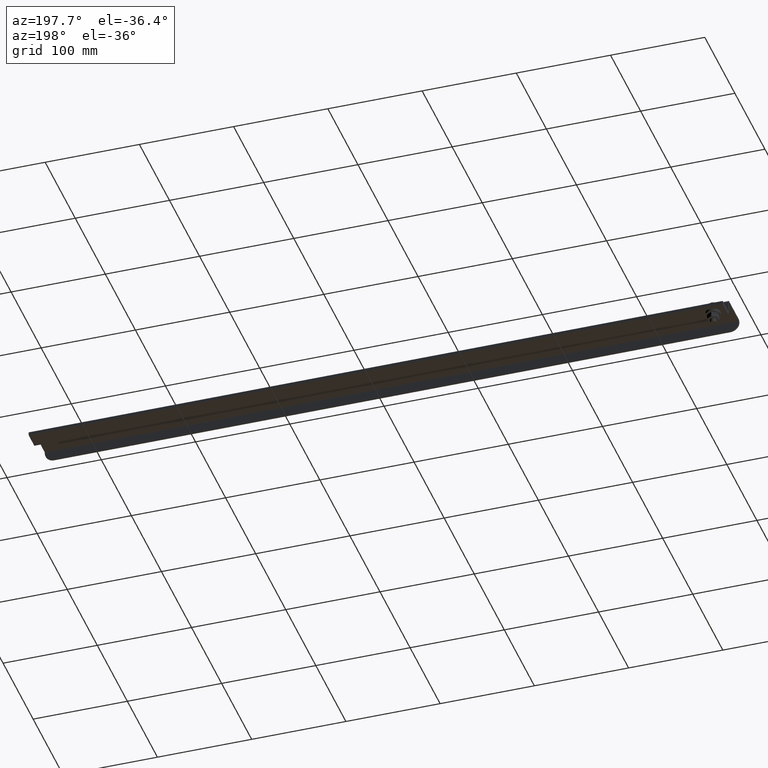
[diagram: clean part render]
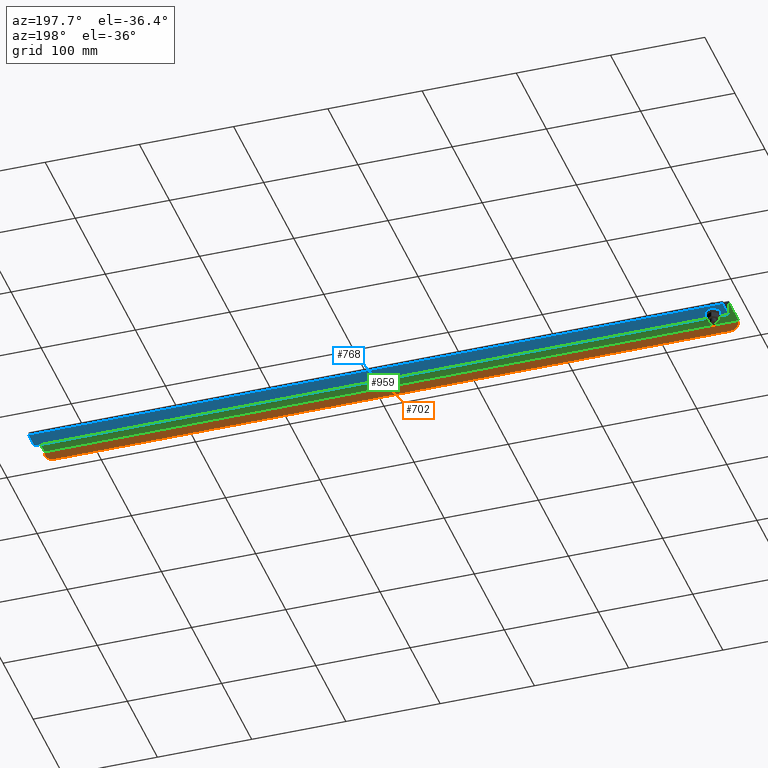
[diagram: same view with three faces highlighted in distinct colors, each labeled with its STEP entity id]
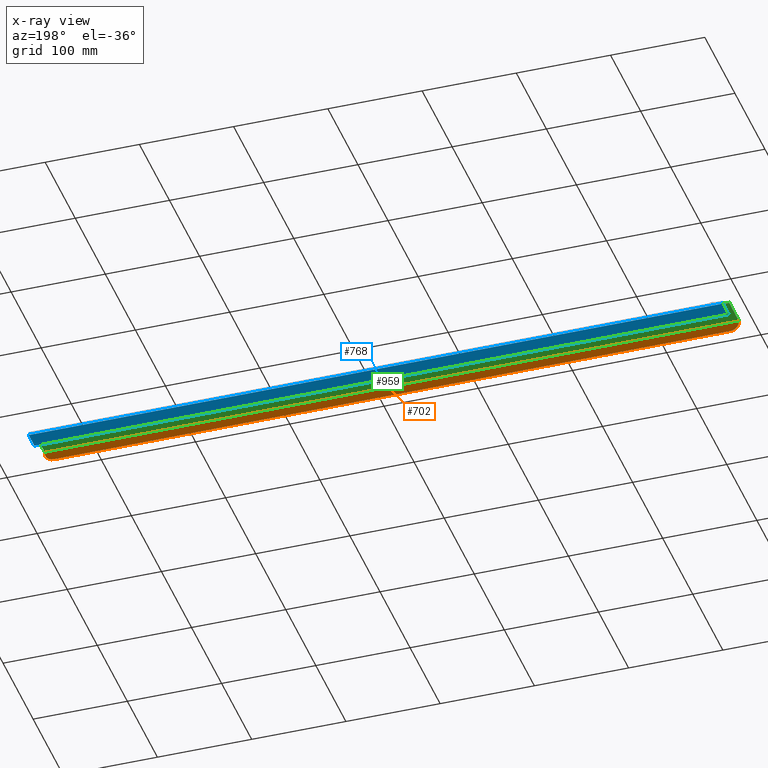
[diagram: x-ray of the same camera — body ghosted, the three highlighted faces saturated]
A machine part, auxiliary view with three faces highlighted in distinct colors.
The next image is the same camera in x-ray (body ghosted, the three faces saturated) — at least one of them is partly hidden behind the body in this view.
Their STEP definitions:

[orange] entity #702 — the highlighted planar face has unit normal (0, -1, -0).
#8 = DIRECTION ( 'NONE',  ( 0.0000000000000000000, 0.0000000000000000000, -1.000000000000000000 ) ) ;
#34 = CARTESIAN_POINT ( 'NONE',  ( -14.50000000000000178, -1.022000000000011788, 0.5095000000000000639 ) ) ;
#66 = ORIENTED_EDGE ( 'NONE', *, *, #1267, .F. ) ;
#154 = AXIS2_PLACEMENT_3D ( 'NONE', #2006, #249, #855 ) ;
#164 = CARTESIAN_POINT ( 'NONE',  ( -14.50000000000000178, -1.022000000000012010, 0.4470000000000000639 ) ) ;
#196 = DIRECTION ( 'NONE',  ( 1.000000000000000000, 0.0000000000000000000, 0.0000000000000000000 ) ) ;
#249 = DIRECTION ( 'NONE',  ( 0.0000000000000000000, -1.000000000000000000, 0.0000000000000000000 ) ) ;
#257 = EDGE_LOOP ( 'NONE', ( #778, #66, #964, #2224, #467, #2267 ) ) ;
#315 = EDGE_CURVE ( 'NONE', #1581, #971, #2338, .T. ) ;
#430 = AXIS2_PLACEMENT_3D ( 'NONE', #1500, #1864, #2058 ) ;
#467 = ORIENTED_EDGE ( 'NONE', *, *, #1985, .T. ) ;
#652 = VECTOR ( 'NONE', #2140, 39.37007874015748143 ) ;
#702 = ADVANCED_FACE ( 'NONE', ( #1110 ), #904, .F. ) ;
#738 = CARTESIAN_POINT ( 'NONE',  ( -14.12500000000000000, -1.022000000000012010, 0.4470000000000000639 ) ) ;
#778 = ORIENTED_EDGE ( 'NONE', *, *, #1837, .F. ) ;
#794 = LINE ( 'NONE', #1712, #2260 ) ;
#807 = EDGE_CURVE ( 'NONE', #971, #1336, #1588, .T. ) ;
#855 = DIRECTION ( 'NONE',  ( 0.0000000000000000000, 0.0000000000000000000, -1.000000000000000000 ) ) ;
#904 = PLANE ( 'NONE',  #430 ) ;
#964 = ORIENTED_EDGE ( 'NONE', *, *, #807, .F. ) ;
#971 = VERTEX_POINT ( 'NONE', #164 ) ;
#1050 = DIRECTION ( 'NONE',  ( -0.0000000000000000000, -6.123031769111889989E-17, 1.000000000000000000 ) ) ;
#1102 = CIRCLE ( 'NONE', #154, 0.3750000000000000555 ) ;
#1110 = FACE_OUTER_BOUND ( 'NONE', #257, .T. ) ;
#1119 = CARTESIAN_POINT ( 'NONE',  ( 14.50000000000000178, -1.022000000000012010, 0.4640000000000000235 ) ) ;
#1187 = CARTESIAN_POINT ( 'NONE',  ( 14.50000000000000178, -1.022000000000011788, 0.4470000000000000639 ) ) ;
#1215 = CARTESIAN_POINT ( 'NONE',  ( 14.12500000000000000, -1.022000000000011788, 0.07200000000000000844 ) ) ;
#1235 = VERTEX_POINT ( 'NONE', #1215 ) ;
#1259 = CARTESIAN_POINT ( 'NONE',  ( -14.12500000000000000, -1.022000000000012010, 0.07200000000000000844 ) ) ;
#1267 = EDGE_CURVE ( 'NONE', #1336, #1235, #1584, .T. ) ;
#1281 = LINE ( 'NONE', #1422, #1636 ) ;
#1336 = VERTEX_POINT ( 'NONE', #1259 ) ;
#1422 = CARTESIAN_POINT ( 'NONE',  ( 14.50000000000000178, -1.022000000000011788, 0.5095000000000000639 ) ) ;
#1451 = VERTEX_POINT ( 'NONE', #1119 ) ;
#1485 = AXIS2_PLACEMENT_3D ( 'NONE', #738, #2337, #8 ) ;
#1500 = CARTESIAN_POINT ( 'NONE',  ( 14.50000000000000178, -1.022000000000011788, 0.5095000000000000639 ) ) ;
#1581 = VERTEX_POINT ( 'NONE', #1914 ) ;
#1584 = LINE ( 'NONE', #2209, #2052 ) ;
#1588 = CIRCLE ( 'NONE', #1485, 0.3750000000000000555 ) ;
#1636 = VECTOR ( 'NONE', #1050, 39.37007874015748143 ) ;
#1671 = VERTEX_POINT ( 'NONE', #1187 ) ;
#1712 = CARTESIAN_POINT ( 'NONE',  ( -14.50000000000000178, -1.022000000000012010, 0.4640000000000000235 ) ) ;
#1837 = EDGE_CURVE ( 'NONE', #1235, #1671, #1102, .T. ) ;
#1864 = DIRECTION ( 'NONE',  ( 0.0000000000000000000, -1.000000000000000000, -6.123031769111889989E-17 ) ) ;
#1893 = EDGE_CURVE ( 'NONE', #1671, #1451, #1281, .T. ) ;
#1914 = CARTESIAN_POINT ( 'NONE',  ( -14.50000000000000178, -1.022000000000012010, 0.4640000000000000235 ) ) ;
#1985 = EDGE_CURVE ( 'NONE', #1581, #1451, #794, .T. ) ;
#2006 = CARTESIAN_POINT ( 'NONE',  ( 14.12500000000000000, -1.022000000000011788, 0.4470000000000000639 ) ) ;
#2035 = DIRECTION ( 'NONE',  ( 1.000000000000000000, 0.0000000000000000000, 0.0000000000000000000 ) ) ;
#2052 = VECTOR ( 'NONE', #2035, 39.37007874015748143 ) ;
#2058 = DIRECTION ( 'NONE',  ( 0.0000000000000000000, 6.123031769111889989E-17, -1.000000000000000000 ) ) ;
#2140 = DIRECTION ( 'NONE',  ( 0.0000000000000000000, 6.123031769111889989E-17, -1.000000000000000000 ) ) ;
#2209 = CARTESIAN_POINT ( 'NONE',  ( 14.50000000000000178, -1.022000000000011788, 0.07200000000000000844 ) ) ;
#2224 = ORIENTED_EDGE ( 'NONE', *, *, #315, .F. ) ;
#2260 = VECTOR ( 'NONE', #196, 39.37007874015748143 ) ;
#2267 = ORIENTED_EDGE ( 'NONE', *, *, #1893, .F. ) ;
#2337 = DIRECTION ( 'NONE',  ( 0.0000000000000000000, -1.000000000000000000, 0.0000000000000000000 ) ) ;
#2338 = LINE ( 'NONE', #34, #652 ) ;

[blue] entity #768 — the highlighted planar face has unit normal (-0, 0, -1).
#37 = EDGE_LOOP ( 'NONE', ( #2125, #405, #2139, #683 ) ) ;
#77 = VERTEX_POINT ( 'NONE', #514 ) ;
#83 = EDGE_CURVE ( 'NONE', #77, #1878, #2247, .T. ) ;
#153 = DIRECTION ( 'NONE',  ( -5.652099297236410272E-17, -1.000000000000000000, -5.691349986800544674E-17 ) ) ;
#271 = VECTOR ( 'NONE', #2450, 39.37007874015748143 ) ;
#284 = VECTOR ( 'NONE', #153, 39.37007874015748143 ) ;
#320 = DIRECTION ( 'NONE',  ( -5.652099297236410272E-17, -1.000000000000000000, -5.691349986800544674E-17 ) ) ;
#405 = ORIENTED_EDGE ( 'NONE', *, *, #674, .T. ) ;
#426 = CARTESIAN_POINT ( 'NONE',  ( -14.50000000000000178, 0.3440000000000020264, -0.1350000000000000089 ) ) ;
#514 = CARTESIAN_POINT ( 'NONE',  ( 14.50000000000000178, 1.094000000000000306, -0.1349999999999999534 ) ) ;
#600 = VECTOR ( 'NONE', #1406, 39.37007874015748143 ) ;
#674 = EDGE_CURVE ( 'NONE', #2368, #77, #1562, .T. ) ;
#683 = ORIENTED_EDGE ( 'NONE', *, *, #1775, .T. ) ;
#732 = DIRECTION ( 'NONE',  ( -6.690666838391851913E-32, 5.691349986800544674E-17, -1.000000000000000000 ) ) ;
#768 = ADVANCED_FACE ( 'NONE', ( #2384 ), #1666, .T. ) ;
#772 = EDGE_CURVE ( 'NONE', #1958, #2368, #861, .T. ) ;
#861 = LINE ( 'NONE', #1682, #271 ) ;
#871 = CARTESIAN_POINT ( 'NONE',  ( -14.50000000000000178, 1.094000000000002082, -0.1349999999999999534 ) ) ;
#1054 = CARTESIAN_POINT ( 'NONE',  ( -14.50000000000000178, 0.3440000000000019709, -0.1349999999999999811 ) ) ;
#1204 = VECTOR ( 'NONE', #2068, 39.37007874015748143 ) ;
#1316 = CARTESIAN_POINT ( 'NONE',  ( -14.50000000000000178, 0.3440000000000020264, -0.1350000000000000089 ) ) ;
#1406 = DIRECTION ( 'NONE',  ( -1.000000000000000000, 5.652099297236410272E-17, 7.012347590999070033E-32 ) ) ;
#1536 = AXIS2_PLACEMENT_3D ( 'NONE', #1316, #732, #320 ) ;
#1562 = LINE ( 'NONE', #1685, #1204 ) ;
#1666 = PLANE ( 'NONE',  #1536 ) ;
#1682 = CARTESIAN_POINT ( 'NONE',  ( -14.50000000000000178, 0.3440000000000020264, -0.1350000000000000089 ) ) ;
#1685 = CARTESIAN_POINT ( 'NONE',  ( -14.50000000000000178, 1.094000000000002082, -0.1349999999999999534 ) ) ;
#1775 = EDGE_CURVE ( 'NONE', #1878, #1958, #2110, .T. ) ;
#1878 = VERTEX_POINT ( 'NONE', #2183 ) ;
#1958 = VERTEX_POINT ( 'NONE', #1054 ) ;
#2068 = DIRECTION ( 'NONE',  ( 1.000000000000000000, -5.652099297236410272E-17, -7.012347590999070033E-32 ) ) ;
#2110 = LINE ( 'NONE', #426, #600 ) ;
#2125 = ORIENTED_EDGE ( 'NONE', *, *, #772, .T. ) ;
#2139 = ORIENTED_EDGE ( 'NONE', *, *, #83, .T. ) ;
#2183 = CARTESIAN_POINT ( 'NONE',  ( 14.50000000000000178, 0.3440000000000003610, -0.1349999999999999811 ) ) ;
#2247 = LINE ( 'NONE', #2265, #284 ) ;
#2265 = CARTESIAN_POINT ( 'NONE',  ( 14.50000000000000178, 0.3440000000000004166, -0.1350000000000000089 ) ) ;
#2368 = VERTEX_POINT ( 'NONE', #871 ) ;
#2384 = FACE_OUTER_BOUND ( 'NONE', #37, .T. ) ;
#2450 = DIRECTION ( 'NONE',  ( 5.652099297236410272E-17, 1.000000000000000000, 5.691349986800544674E-17 ) ) ;

[green] entity #959 — the highlighted planar face has unit normal (0, 0, 1).
#49 = CARTESIAN_POINT ( 'NONE',  ( 14.50000000000000178, -1.094000000000000083, 0.5000000000000000000 ) ) ;
#148 = VECTOR ( 'NONE', #713, 39.37007874015748143 ) ;
#288 = VERTEX_POINT ( 'NONE', #1949 ) ;
#362 = DIRECTION ( 'NONE',  ( 0.0000000000000000000, 0.0000000000000000000, 1.000000000000000000 ) ) ;
#377 = EDGE_LOOP ( 'NONE', ( #1381, #1273, #2304, #1635 ) ) ;
#570 = FACE_OUTER_BOUND ( 'NONE', #377, .T. ) ;
#620 = EDGE_CURVE ( 'NONE', #1603, #1201, #1317, .T. ) ;
#659 = VECTOR ( 'NONE', #1252, 39.37007874015748143 ) ;
#713 = DIRECTION ( 'NONE',  ( 1.000000000000000000, 0.0000000000000000000, -0.0000000000000000000 ) ) ;
#763 = LINE ( 'NONE', #1178, #2349 ) ;
#892 = DIRECTION ( 'NONE',  ( 0.0000000000000000000, -1.000000000000000000, -0.0000000000000000000 ) ) ;
#894 = EDGE_CURVE ( 'NONE', #288, #1603, #1258, .T. ) ;
#958 = PLANE ( 'NONE',  #1115 ) ;
#959 = ADVANCED_FACE ( 'NONE', ( #570 ), #958, .F. ) ;
#960 = DIRECTION ( 'NONE',  ( -1.000000000000000000, -0.0000000000000000000, 0.0000000000000000000 ) ) ;
#1115 = AXIS2_PLACEMENT_3D ( 'NONE', #1315, #362, #2276 ) ;
#1178 = CARTESIAN_POINT ( 'NONE',  ( -14.50000000000000178, 0.2454999999999998850, 0.5000000000000000000 ) ) ;
#1201 = VERTEX_POINT ( 'NONE', #1964 ) ;
#1252 = DIRECTION ( 'NONE',  ( -0.0000000000000000000, 1.000000000000000000, 0.0000000000000000000 ) ) ;
#1258 = LINE ( 'NONE', #1665, #1494 ) ;
#1273 = ORIENTED_EDGE ( 'NONE', *, *, #2269, .F. ) ;
#1315 = CARTESIAN_POINT ( 'NONE',  ( -14.50000000000000178, -1.094000000000000083, 0.5000000000000000000 ) ) ;
#1317 = LINE ( 'NONE', #1501, #148 ) ;
#1381 = ORIENTED_EDGE ( 'NONE', *, *, #1693, .F. ) ;
#1494 = VECTOR ( 'NONE', #892, 39.37007874015748143 ) ;
#1501 = CARTESIAN_POINT ( 'NONE',  ( -14.50000000000000178, -0.9860000000000119780, 0.5000000000000000000 ) ) ;
#1505 = VERTEX_POINT ( 'NONE', #2078 ) ;
#1508 = CARTESIAN_POINT ( 'NONE',  ( -14.50000000000000178, -0.9860000000000119780, 0.5000000000000000000 ) ) ;
#1603 = VERTEX_POINT ( 'NONE', #1508 ) ;
#1635 = ORIENTED_EDGE ( 'NONE', *, *, #894, .F. ) ;
#1665 = CARTESIAN_POINT ( 'NONE',  ( -14.50000000000000178, -1.094000000000000083, 0.5000000000000000000 ) ) ;
#1693 = EDGE_CURVE ( 'NONE', #1505, #288, #763, .T. ) ;
#1949 = CARTESIAN_POINT ( 'NONE',  ( -14.50000000000000178, 0.2454999999999999405, 0.5000000000000000000 ) ) ;
#1964 = CARTESIAN_POINT ( 'NONE',  ( 14.50000000000000178, -0.9860000000000119780, 0.5000000000000000000 ) ) ;
#2078 = CARTESIAN_POINT ( 'NONE',  ( 14.50000000000000178, 0.2454999999999999405, 0.5000000000000000000 ) ) ;
#2269 = EDGE_CURVE ( 'NONE', #1201, #1505, #2319, .T. ) ;
#2276 = DIRECTION ( 'NONE',  ( 1.000000000000000000, 0.0000000000000000000, -0.0000000000000000000 ) ) ;
#2304 = ORIENTED_EDGE ( 'NONE', *, *, #620, .F. ) ;
#2319 = LINE ( 'NONE', #49, #659 ) ;
#2349 = VECTOR ( 'NONE', #960, 39.37007874015748143 ) ;